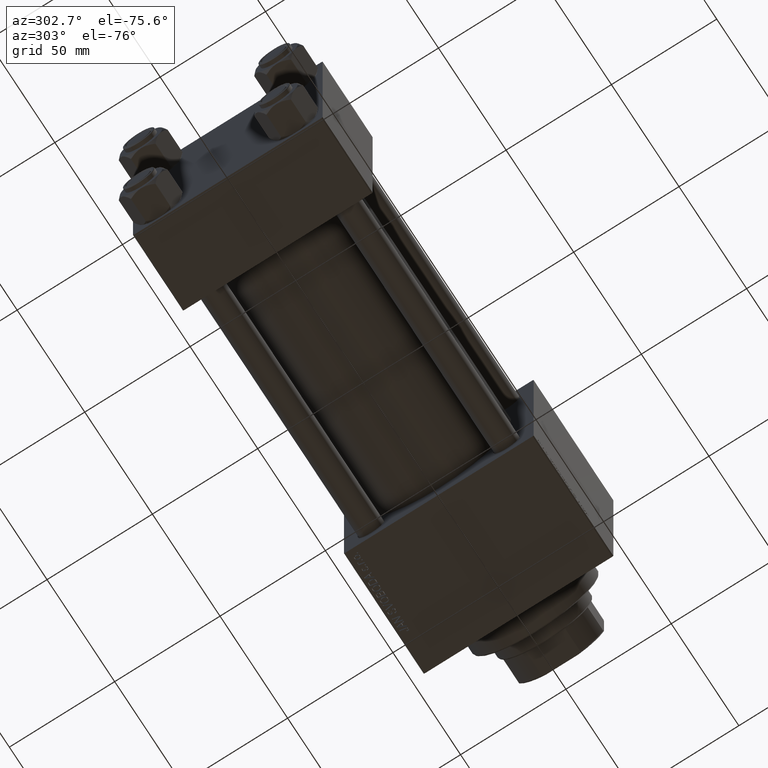
[diagram: clean part render]
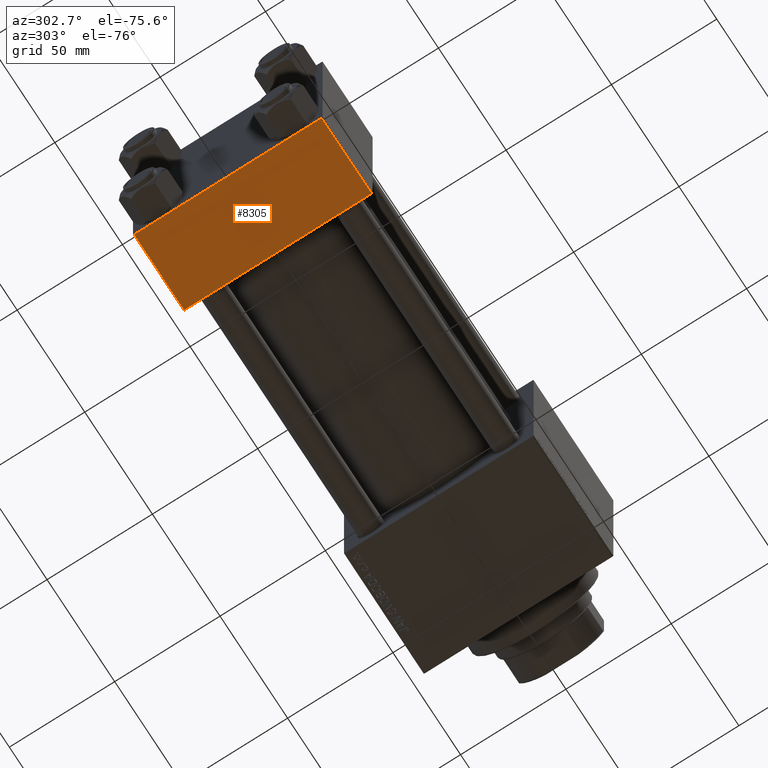
[diagram: same view with one face highlighted and labeled with its STEP entity id]
A machine part, auxiliary view. The second image highlights one B-rep face of the part: STEP entity #8305.
In plain terms, the highlighted planar face has unit normal (0, 0, -1).
Its self-contained STEP definition (entity closure, byte-faithful):
#1720 = DIRECTION ( 'NONE',  ( 0.000000000000000000, -1.000000000000000000, -7.709882115452476934E-17 ) ) ;
#2382 = CARTESIAN_POINT ( 'NONE',  ( 0.000000000000000000, 44.50000000000000000, -44.99999999999999289 ) ) ;
#3332 = VECTOR ( 'NONE', #1720, 1000.000000000000000 ) ;
#3592 = EDGE_CURVE ( 'NONE', #11104, #30793, #21864, .T. ) ;
#6896 = CARTESIAN_POINT ( 'NONE',  ( 37.00000000000000000, 45.00000000000000000, -44.99999999999999289 ) ) ;
#7157 = FACE_OUTER_BOUND ( 'NONE', #10011, .T. ) ;
#8305 = ADVANCED_FACE ( 'NONE', ( #7157 ), #33763, .T. ) ;
#9472 = DIRECTION ( 'NONE',  ( -1.000000000000000000, 0.000000000000000000, 0.000000000000000000 ) ) ;
#10011 = EDGE_LOOP ( 'NONE', ( #28504, #15134, #28991, #35289 ) ) ;
#11104 = VERTEX_POINT ( 'NONE', #14713 ) ;
#12489 = CARTESIAN_POINT ( 'NONE',  ( 0.000000000000000000, -44.49999999999994316, -45.00000000000000000 ) ) ;
#13300 = VERTEX_POINT ( 'NONE', #13488 ) ;
#13488 = CARTESIAN_POINT ( 'NONE',  ( 37.00000000000000000, 44.50000000000000000, -44.99999999999999289 ) ) ;
#14713 = CARTESIAN_POINT ( 'NONE',  ( 37.00000000000000000, -44.49999999999994316, -45.00000000000000000 ) ) ;
#15134 = ORIENTED_EDGE ( 'NONE', *, *, #21917, .T. ) ;
#16591 = CARTESIAN_POINT ( 'NONE',  ( 37.00000000000000000, 44.50000000000000000, -44.99999999999999289 ) ) ;
#17078 = DIRECTION ( 'NONE',  ( 0.000000000000000000, -1.000000000000000000, -7.709882115452476934E-17 ) ) ;
#17327 = CARTESIAN_POINT ( 'NONE',  ( 0.000000000000000000, 45.00000000000000000, -44.99999999999999289 ) ) ;
#17415 = CARTESIAN_POINT ( 'NONE',  ( 37.00000000000000000, 45.00000000000000000, -44.99999999999999289 ) ) ;
#17655 = LINE ( 'NONE', #17415, #3332 ) ;
#17896 = AXIS2_PLACEMENT_3D ( 'NONE', #6896, #18279, #44923 ) ;
#18279 = DIRECTION ( 'NONE',  ( 0.000000000000000000, 7.709882115452478166E-17, -1.000000000000000000 ) ) ;
#20393 = LINE ( 'NONE', #16591, #33608 ) ;
#20805 = VECTOR ( 'NONE', #17078, 1000.000000000000000 ) ;
#21864 = LINE ( 'NONE', #37335, #42877 ) ;
#21917 = EDGE_CURVE ( 'NONE', #35450, #13300, #20393, .T. ) ;
#25169 = LINE ( 'NONE', #17327, #20805 ) ;
#28504 = ORIENTED_EDGE ( 'NONE', *, *, #30613, .F. ) ;
#28991 = ORIENTED_EDGE ( 'NONE', *, *, #43545, .T. ) ;
#30613 = EDGE_CURVE ( 'NONE', #35450, #30793, #25169, .T. ) ;
#30793 = VERTEX_POINT ( 'NONE', #12489 ) ;
#33608 = VECTOR ( 'NONE', #47015, 1000.000000000000000 ) ;
#33763 = PLANE ( 'NONE',  #17896 ) ;
#35289 = ORIENTED_EDGE ( 'NONE', *, *, #3592, .T. ) ;
#35450 = VERTEX_POINT ( 'NONE', #2382 ) ;
#37335 = CARTESIAN_POINT ( 'NONE',  ( 0.000000000000000000, -44.49999999999997158, -45.00000000000000000 ) ) ;
#42877 = VECTOR ( 'NONE', #9472, 1000.000000000000000 ) ;
#43545 = EDGE_CURVE ( 'NONE', #13300, #11104, #17655, .T. ) ;
#44923 = DIRECTION ( 'NONE',  ( 0.000000000000000000, 1.000000000000000000, 7.709882115452478166E-17 ) ) ;
#47015 = DIRECTION ( 'NONE',  ( 1.000000000000000000, 0.000000000000000000, 0.000000000000000000 ) ) ;